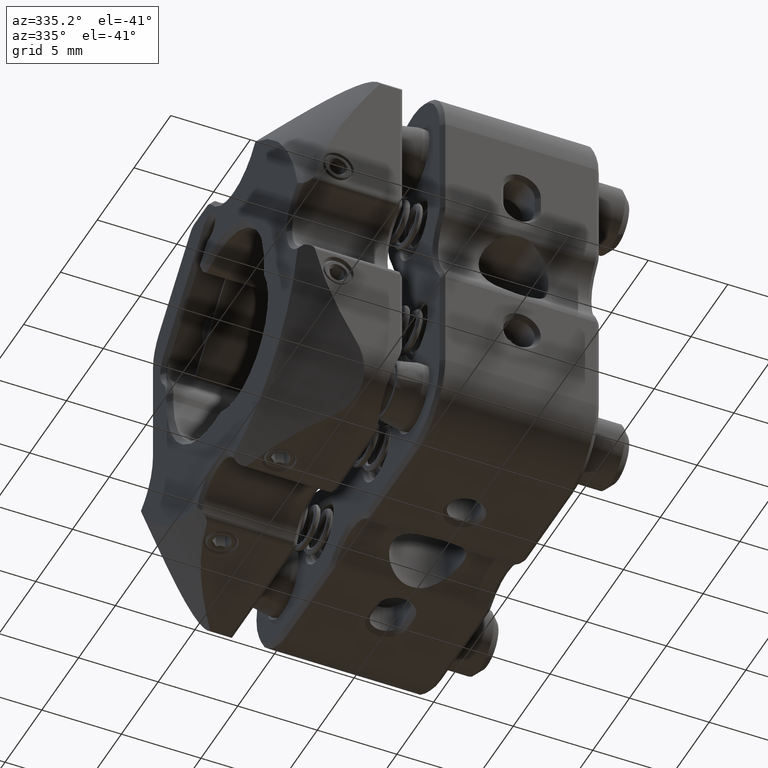
[diagram: clean part render]
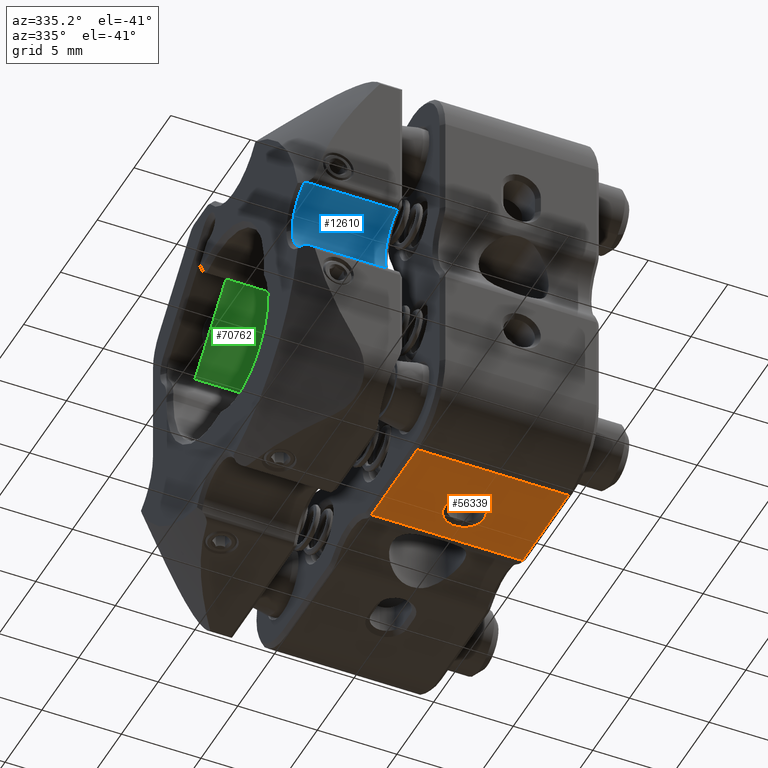
[diagram: same view with three faces highlighted in distinct colors, each labeled with its STEP entity id]
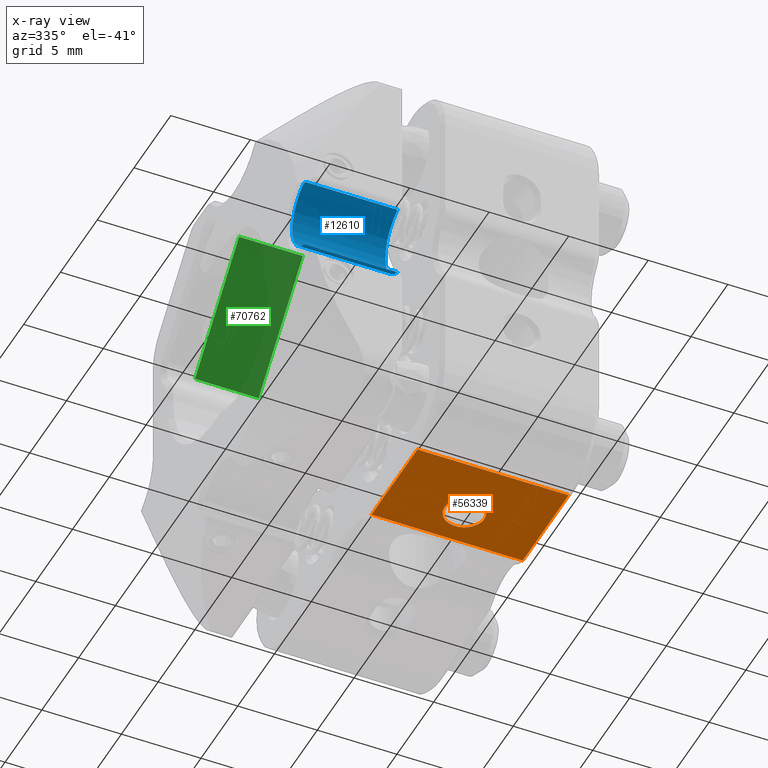
[diagram: x-ray of the same camera — body ghosted, the three highlighted faces saturated]
A machine part, auxiliary view with three faces highlighted in distinct colors.
The next image is the same camera in x-ray (body ghosted, the three faces saturated) — at least one of them is partly hidden behind the body in this view.
Their STEP definitions:

[orange] entity #56339 — the highlighted planar face has unit normal (0, -0, 1).
#2 = FACE_BOUND ( 'NONE', #42111, .T. ) ;
#635 = CARTESIAN_POINT ( 'NONE',  ( 4.749999999999992895, -8.890000000000002345, -12.69999999999999929 ) ) ;
#2191 = CARTESIAN_POINT ( 'NONE',  ( 1.249999999999993783, -4.999999999999998224, -12.69999999999999751 ) ) ;
#3350 = DIRECTION ( 'NONE',  ( 0.000000000000000000, -1.365923996832131609E-16, 1.000000000000000000 ) ) ;
#4129 = DIRECTION ( 'NONE',  ( 0.000000000000000000, -1.365923996832131609E-16, 1.000000000000000000 ) ) ;
#4254 = VERTEX_POINT ( 'NONE', #73492 ) ;
#6314 = DIRECTION ( 'NONE',  ( 0.000000000000000000, 1.000000000000000000, 1.365923996832131609E-16 ) ) ;
#10684 = CARTESIAN_POINT ( 'NONE',  ( -1.224646799147353256E-15, -4.999999999999998224, -12.69999999999999751 ) ) ;
#11471 = EDGE_CURVE ( 'NONE', #89182, #47711, #92621, .T. ) ;
#12589 = EDGE_CURVE ( 'NONE', #47711, #4254, #38997, .T. ) ;
#12673 = VECTOR ( 'NONE', #31524, 1000.000000000000000 ) ;
#13293 = LINE ( 'NONE', #20241, #59035 ) ;
#13311 = CARTESIAN_POINT ( 'NONE',  ( -4.749999999999996447, 12.69999999999999574, -12.69999999999999574 ) ) ;
#16858 = AXIS2_PLACEMENT_3D ( 'NONE', #62568, #4129, #69970 ) ;
#17340 = DIRECTION ( 'NONE',  ( -1.000000000000000000, 0.000000000000000000, 0.000000000000000000 ) ) ;
#18994 = DIRECTION ( 'NONE',  ( 0.000000000000000000, -1.365923996832131609E-16, 1.000000000000000000 ) ) ;
#19059 = ORIENTED_EDGE ( 'NONE', *, *, #11471, .T. ) ;
#20241 = CARTESIAN_POINT ( 'NONE',  ( 4.749999999999992895, -8.890000000000002345, -12.69999999999999929 ) ) ;
#23290 = VERTEX_POINT ( 'NONE', #635 ) ;
#25284 = AXIS2_PLACEMENT_3D ( 'NONE', #10684, #3350, #33082 ) ;
#26010 = DIRECTION ( 'NONE',  ( 0.000000000000000000, -1.000000000000000000, 0.000000000000000000 ) ) ;
#31524 = DIRECTION ( 'NONE',  ( 1.000000000000000000, 0.000000000000000000, 0.000000000000000000 ) ) ;
#33082 = DIRECTION ( 'NONE',  ( 0.000000000000000000, -1.000000000000000000, 0.000000000000000000 ) ) ;
#33925 = ORIENTED_EDGE ( 'NONE', *, *, #12589, .T. ) ;
#34687 = DIRECTION ( 'NONE',  ( 0.000000000000000000, -1.000000000000000000, -1.365923996832131609E-16 ) ) ;
#35015 = CIRCLE ( 'NONE', #25284, 1.249999999999995115 ) ;
#35232 = EDGE_LOOP ( 'NONE', ( #35251, #19059, #33925, #43099 ) ) ;
#35251 = ORIENTED_EDGE ( 'NONE', *, *, #63005, .T. ) ;
#38997 = LINE ( 'NONE', #52933, #12673 ) ;
#42111 = EDGE_LOOP ( 'NONE', ( #75084, #93657 ) ) ;
#43099 = ORIENTED_EDGE ( 'NONE', *, *, #69579, .T. ) ;
#43950 = EDGE_CURVE ( 'NONE', #80924, #50251, #71444, .T. ) ;
#44591 = LINE ( 'NONE', #61099, #45717 ) ;
#44621 = AXIS2_PLACEMENT_3D ( 'NONE', #62750, #18994, #26010 ) ;
#45249 = CARTESIAN_POINT ( 'NONE',  ( -1.249999999999996447, -4.999999999999998224, -12.69999999999999751 ) ) ;
#45717 = VECTOR ( 'NONE', #17340, 1000.000000000000000 ) ;
#47711 = VERTEX_POINT ( 'NONE', #66340 ) ;
#49205 = VECTOR ( 'NONE', #6314, 1000.000000000000000 ) ;
#50251 = VERTEX_POINT ( 'NONE', #45249 ) ;
#50631 = EDGE_CURVE ( 'NONE', #50251, #80924, #35015, .T. ) ;
#52933 = CARTESIAN_POINT ( 'NONE',  ( 5.000000000000000000, -2.645751311064588940, -12.69999999999999751 ) ) ;
#56339 = ADVANCED_FACE ( 'NONE', ( #2, #74373 ), #91322, .F. ) ;
#59035 = VECTOR ( 'NONE', #34687, 1000.000000000000000 ) ;
#61099 = CARTESIAN_POINT ( 'NONE',  ( 5.000000000000000000, -8.890000000000002345, -12.69999999999999929 ) ) ;
#62568 = CARTESIAN_POINT ( 'NONE',  ( 5.000000000000000000, 12.69999999999999574, -12.69999999999999574 ) ) ;
#62750 = CARTESIAN_POINT ( 'NONE',  ( -1.224646799147353256E-15, -4.999999999999998224, -12.69999999999999751 ) ) ;
#63005 = EDGE_CURVE ( 'NONE', #23290, #89182, #44591, .T. ) ;
#66340 = CARTESIAN_POINT ( 'NONE',  ( -4.749999999999996447, -2.645751311064588940, -12.69999999999999751 ) ) ;
#69579 = EDGE_CURVE ( 'NONE', #4254, #23290, #13293, .T. ) ;
#69970 = DIRECTION ( 'NONE',  ( 0.000000000000000000, -1.000000000000000000, -1.365923996832131609E-16 ) ) ;
#71444 = CIRCLE ( 'NONE', #44621, 1.249999999999995115 ) ;
#73492 = CARTESIAN_POINT ( 'NONE',  ( 4.749999999999992895, -2.645751311064588940, -12.69999999999999751 ) ) ;
#74373 = FACE_OUTER_BOUND ( 'NONE', #35232, .T. ) ;
#75084 = ORIENTED_EDGE ( 'NONE', *, *, #50631, .T. ) ;
#80924 = VERTEX_POINT ( 'NONE', #2191 ) ;
#83690 = CARTESIAN_POINT ( 'NONE',  ( -4.749999999999996447, -8.890000000000002345, -12.69999999999999929 ) ) ;
#89182 = VERTEX_POINT ( 'NONE', #83690 ) ;
#91322 = PLANE ( 'NONE',  #16858 ) ;
#92621 = LINE ( 'NONE', #13311, #49205 ) ;
#93657 = ORIENTED_EDGE ( 'NONE', *, *, #43950, .T. ) ;

[blue] entity #12610 — the highlighted cylindrical surface (partial cylindrical patch) has radius 2.5 mm, axis along (1, -0, 0).
#119 = CARTESIAN_POINT ( 'NONE',  ( -13.03763652630314773, -11.57695163508580194, 2.346516753787717402 ) ) ;
#735 = EDGE_CURVE ( 'NONE', #17920, #84632, #15525, .T. ) ;
#3915 = CIRCLE ( 'NONE', #58283, 2.499999999999998668 ) ;
#4350 = ORIENTED_EDGE ( 'NONE', *, *, #71148, .F. ) ;
#5278 = CARTESIAN_POINT ( 'NONE',  ( -7.250000000000027534, -11.60666666666707947, -2.357022603955449824 ) ) ;
#5717 = VERTEX_POINT ( 'NONE', #5278 ) ;
#8912 = CARTESIAN_POINT ( 'NONE',  ( -13.10000000000000497, -11.51793006430909116, -2.323744184219846076 ) ) ;
#10468 = CARTESIAN_POINT ( 'NONE',  ( -7.250000000000025757, -12.44000000000041339, -2.933119750817062679E-13 ) ) ;
#10542 = DIRECTION ( 'NONE',  ( 1.000000000000000000, -0.000000000000000000, 0.000000000000000000 ) ) ;
#10659 = CIRCLE ( 'NONE', #38176, 2.499999999999998668 ) ;
#11287 = ORIENTED_EDGE ( 'NONE', *, *, #85355, .F. ) ;
#12610 = ADVANCED_FACE ( 'NONE', ( #85861 ), #28683, .F. ) ;
#12729 = ORIENTED_EDGE ( 'NONE', *, *, #735, .F. ) ;
#15519 = CARTESIAN_POINT ( 'NONE',  ( -13.10000000000000497, -11.51793006430909116, -2.323744184219846076 ) ) ;
#15525 = CIRCLE ( 'NONE', #58730, 2.499999999999998668 ) ;
#17431 = DIRECTION ( 'NONE',  ( 0.000000000000000000, 1.000000000000000000, 7.016786371681256439E-17 ) ) ;
#17920 = VERTEX_POINT ( 'NONE', #8912 ) ;
#19695 = EDGE_CURVE ( 'NONE', #84632, #39451, #10659, .T. ) ;
#21811 = EDGE_CURVE ( 'NONE', #89938, #17920, #49864, .T. ) ;
#22132 = CARTESIAN_POINT ( 'NONE',  ( -13.00642508924494400, -11.60666666666708124, 2.357022603954864071 ) ) ;
#23519 = DIRECTION ( 'NONE',  ( 0.000000000000000000, -1.000000000000000000, -7.016786371681256439E-17 ) ) ;
#24776 = DIRECTION ( 'NONE',  ( 1.000000000000000000, 0.000000000000000000, 0.000000000000000000 ) ) ;
#25961 = ORIENTED_EDGE ( 'NONE', *, *, #21811, .F. ) ;
#26829 = DIRECTION ( 'NONE',  ( -1.000000000000000000, 0.000000000000000000, -0.000000000000000000 ) ) ;
#27275 = VECTOR ( 'NONE', #26829, 1000.000000000000000 ) ;
#27774 = CARTESIAN_POINT ( 'NONE',  ( -13.35000000000000142, -11.60666666666707947, -2.357022603955449824 ) ) ;
#28683 = CYLINDRICAL_SURFACE ( 'NONE', #79035, 2.499999999999998668 ) ;
#28916 = DIRECTION ( 'NONE',  ( 1.000000000000000000, 0.000000000000000000, 0.000000000000000000 ) ) ;
#35718 = CARTESIAN_POINT ( 'NONE',  ( -13.00642508924494756, -11.60666666666707947, -2.357022603955450268 ) ) ;
#38176 = AXIS2_PLACEMENT_3D ( 'NONE', #89968, #24776, #17431 ) ;
#38297 = ORIENTED_EDGE ( 'NONE', *, *, #81492, .F. ) ;
#39451 = VERTEX_POINT ( 'NONE', #51055 ) ;
#39840 = LINE ( 'NONE', #27774, #27275 ) ;
#40195 = DIRECTION ( 'NONE',  ( -1.000000000000000000, -0.000000000000000000, -0.000000000000000000 ) ) ;
#43895 = CARTESIAN_POINT ( 'NONE',  ( -13.06882865430640628, -11.54737245272547774, 2.335427028388620485 ) ) ;
#47631 = CARTESIAN_POINT ( 'NONE',  ( -13.03763652630314951, -11.57695163508579839, -2.346516753788302267 ) ) ;
#49864 = B_SPLINE_CURVE_WITH_KNOTS ( 'NONE', 3,
 ( #55573, #47631, #91655, #15519 ),
 .UNSPECIFIED., .F., .F.,
 ( 4, 4 ),
 ( 0.001051785544025553298, 0.001184645224362751046 ),
 .UNSPECIFIED. ) ;
#50888 = VERTEX_POINT ( 'NONE', #54454 ) ;
#51055 = CARTESIAN_POINT ( 'NONE',  ( -13.10000000000000320, -11.51793006430909294, 2.323744184219260323 ) ) ;
#51139 = CARTESIAN_POINT ( 'NONE',  ( -13.10000000000000497, -9.940000000000413394, -2.931277844394496758E-13 ) ) ;
#51496 = LINE ( 'NONE', #62275, #74334 ) ;
#54454 = CARTESIAN_POINT ( 'NONE',  ( -7.250000000000027534, -11.60666666666707947, 2.357022603954863182 ) ) ;
#54745 = ORIENTED_EDGE ( 'NONE', *, *, #59854, .F. ) ;
#55573 = CARTESIAN_POINT ( 'NONE',  ( -13.00642508924494756, -11.60666666666707947, -2.357022603955450268 ) ) ;
#58283 = AXIS2_PLACEMENT_3D ( 'NONE', #10468, #40195, #75978 ) ;
#58730 = AXIS2_PLACEMENT_3D ( 'NONE', #87059, #28916, #94715 ) ;
#59854 = EDGE_CURVE ( 'NONE', #39451, #77507, #85151, .T. ) ;
#59921 = DIRECTION ( 'NONE',  ( 1.000000000000000000, -0.000000000000000000, 0.000000000000000000 ) ) ;
#62275 = CARTESIAN_POINT ( 'NONE',  ( -13.35000000000000142, -11.60666666666707947, 2.357022603954863182 ) ) ;
#64393 = CARTESIAN_POINT ( 'NONE',  ( -13.00642508924494400, -11.60666666666708124, 2.357022603954864071 ) ) ;
#71148 = EDGE_CURVE ( 'NONE', #5717, #89938, #39840, .T. ) ;
#74334 = VECTOR ( 'NONE', #10542, 1000.000000000000000 ) ;
#75978 = DIRECTION ( 'NONE',  ( 0.000000000000000000, 1.000000000000000000, -1.706188975683440501E-15 ) ) ;
#77507 = VERTEX_POINT ( 'NONE', #64393 ) ;
#79035 = AXIS2_PLACEMENT_3D ( 'NONE', #81692, #59921, #23519 ) ;
#81492 = EDGE_CURVE ( 'NONE', #50888, #5717, #3915, .T. ) ;
#81692 = CARTESIAN_POINT ( 'NONE',  ( -13.35000000000000142, -12.44000000000041339, -2.933119750817062679E-13 ) ) ;
#84501 = EDGE_LOOP ( 'NONE', ( #25961, #4350, #38297, #11287, #54745, #94434, #12729 ) ) ;
#84632 = VERTEX_POINT ( 'NONE', #51139 ) ;
#85151 = B_SPLINE_CURVE_WITH_KNOTS ( 'NONE', 3,
 ( #88893, #43895, #119, #22132 ),
 .UNSPECIFIED., .F., .F.,
 ( 4, 4 ),
 ( 0.0003561636489153691370, 0.0004890233292525684571 ),
 .UNSPECIFIED. ) ;
#85355 = EDGE_CURVE ( 'NONE', #77507, #50888, #51496, .T. ) ;
#85861 = FACE_OUTER_BOUND ( 'NONE', #84501, .T. ) ;
#87059 = CARTESIAN_POINT ( 'NONE',  ( -13.10000000000000497, -12.44000000000041339, -2.933119750817062679E-13 ) ) ;
#88893 = CARTESIAN_POINT ( 'NONE',  ( -13.10000000000000320, -11.51793006430909294, 2.323744184219260323 ) ) ;
#89938 = VERTEX_POINT ( 'NONE', #35718 ) ;
#89968 = CARTESIAN_POINT ( 'NONE',  ( -13.10000000000000497, -12.44000000000041339, -2.933119750817062679E-13 ) ) ;
#91655 = CARTESIAN_POINT ( 'NONE',  ( -13.06882865430640628, -11.54737245272547419, -2.335427028389206239 ) ) ;
#94434 = ORIENTED_EDGE ( 'NONE', *, *, #19695, .F. ) ;
#94715 = DIRECTION ( 'NONE',  ( 0.000000000000000000, 1.000000000000000000, 7.016786371681256439E-17 ) ) ;

[green] entity #70762 — the highlighted planar face has unit normal (-0, 0.7071, 0.7071).
#3496 = ORIENTED_EDGE ( 'NONE', *, *, #42520, .F. ) ;
#4139 = LINE ( 'NONE', #11611, #29241 ) ;
#7263 = LINE ( 'NONE', #55323, #15207 ) ;
#11611 = CARTESIAN_POINT ( 'NONE',  ( -7.499999999999930722, 0.7424621202452700297, 8.520636713297641052 ) ) ;
#12798 = CARTESIAN_POINT ( 'NONE',  ( -11.49999999999993072, 0.7424621202452688085, 8.520636713297639275 ) ) ;
#14271 = VERTEX_POINT ( 'NONE', #77208 ) ;
#15207 = VECTOR ( 'NONE', #62968, 1000.000000000000000 ) ;
#15912 = VERTEX_POINT ( 'NONE', #81461 ) ;
#17354 = CARTESIAN_POINT ( 'NONE',  ( -7.499999999999928946, 6.752869760330919569, 2.510229073211982520 ) ) ;
#17581 = VECTOR ( 'NONE', #90826, 1000.000000000000000 ) ;
#17586 = PLANE ( 'NONE',  #45775 ) ;
#17781 = VERTEX_POINT ( 'NONE', #87498 ) ;
#22803 = VERTEX_POINT ( 'NONE', #12798 ) ;
#24754 = LINE ( 'NONE', #93342, #62532 ) ;
#26924 = DIRECTION ( 'NONE',  ( 1.000000000000000000, 4.783867408263327493E-16, 3.454775700404971003E-16 ) ) ;
#28336 = EDGE_CURVE ( 'NONE', #17781, #14271, #24754, .T. ) ;
#29241 = VECTOR ( 'NONE', #26924, 1000.000000000000000 ) ;
#30651 = EDGE_LOOP ( 'NONE', ( #3496, #89013, #94646, #36502 ) ) ;
#35780 = FACE_OUTER_BOUND ( 'NONE', #30651, .T. ) ;
#36502 = ORIENTED_EDGE ( 'NONE', *, *, #52356, .F. ) ;
#36786 = DIRECTION ( 'NONE',  ( -1.000000000000000000, -4.783867408263327493E-16, -3.454775700404971003E-16 ) ) ;
#42520 = EDGE_CURVE ( 'NONE', #22803, #15912, #4139, .T. ) ;
#45775 = AXIS2_PLACEMENT_3D ( 'NONE', #90743, #61671, #54657 ) ;
#48996 = EDGE_CURVE ( 'NONE', #14271, #22803, #7263, .T. ) ;
#52356 = EDGE_CURVE ( 'NONE', #15912, #17781, #77039, .T. ) ;
#54657 = DIRECTION ( 'NONE',  ( -1.000000000000000000, -3.250573991579954834E-16, -4.988069117088346127E-16 ) ) ;
#55323 = CARTESIAN_POINT ( 'NONE',  ( -11.49999999999992895, 6.752869760330918680, 2.510229073211981188 ) ) ;
#61671 = DIRECTION ( 'NONE',  ( -5.825600409915173357E-16, 0.7071067811865481278, 0.7071067811865470176 ) ) ;
#62532 = VECTOR ( 'NONE', #36786, 1000.000000000000000 ) ;
#62968 = DIRECTION ( 'NONE',  ( -1.228594585525559177E-16, -0.7071067811865470176, 0.7071067811865480168 ) ) ;
#70762 = ADVANCED_FACE ( 'NONE', ( #35780 ), #17586, .F. ) ;
#77039 = LINE ( 'NONE', #17354, #17581 ) ;
#77208 = CARTESIAN_POINT ( 'NONE',  ( -11.49999999999992895, 6.752869760330918680, 2.510229073211981188 ) ) ;
#81461 = CARTESIAN_POINT ( 'NONE',  ( -7.499999999999930722, 0.7424621202452700297, 8.520636713297641052 ) ) ;
#87498 = CARTESIAN_POINT ( 'NONE',  ( -7.499999999999928946, 6.752869760330919569, 2.510229073211982520 ) ) ;
#89013 = ORIENTED_EDGE ( 'NONE', *, *, #48996, .F. ) ;
#90743 = CARTESIAN_POINT ( 'NONE',  ( -9.499999999999930722, 3.747665940288092745, 5.515432893254812896 ) ) ;
#90826 = DIRECTION ( 'NONE',  ( 1.228594585525559177E-16, 0.7071067811865470176, -0.7071067811865480168 ) ) ;
#93342 = CARTESIAN_POINT ( 'NONE',  ( -7.499999999999928946, 6.752869760330919569, 2.510229073211982520 ) ) ;
#94646 = ORIENTED_EDGE ( 'NONE', *, *, #28336, .F. ) ;